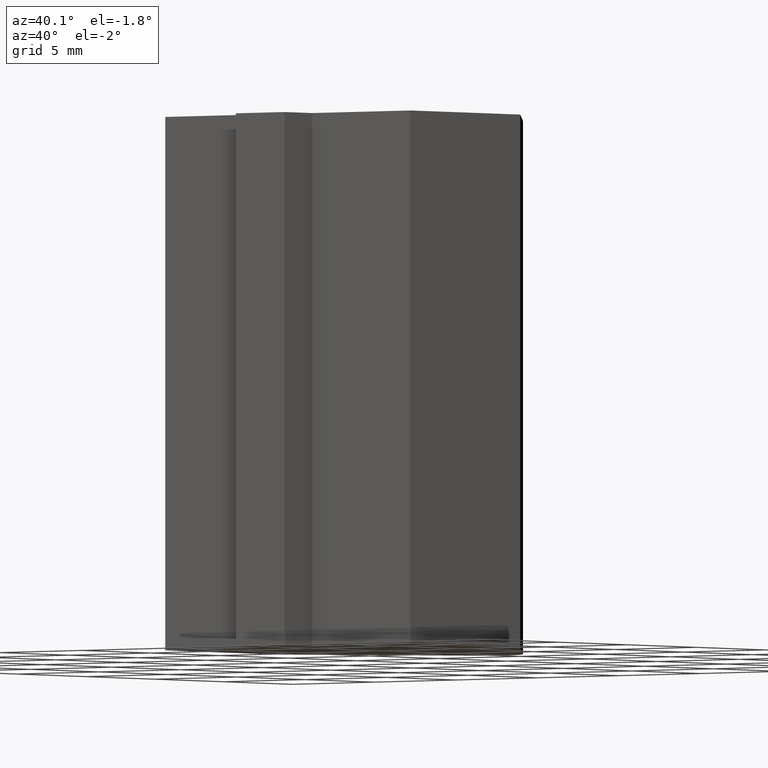
[diagram: clean part render]
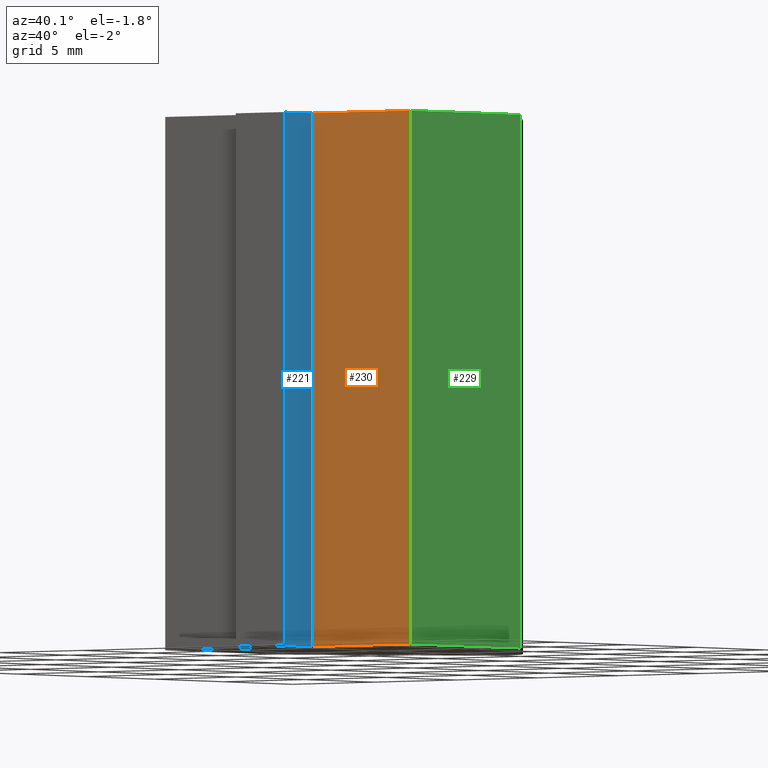
[diagram: same view with three faces highlighted in distinct colors, each labeled with its STEP entity id]
A machine part, auxiliary view with three faces highlighted in distinct colors.
Their STEP definitions:

[orange] entity #230 — the highlighted planar face has unit normal (-0, -1, 0).
#27=FACE_OUTER_BOUND('',#39,.T.);
#39=EDGE_LOOP('',(#195,#196,#197,#198));
#44=LINE('',#333,#72);
#54=LINE('',#354,#82);
#69=LINE('',#386,#97);
#70=LINE('',#388,#98);
#72=VECTOR('',#274,10.);
#82=VECTOR('',#288,10.);
#97=VECTOR('',#321,10.);
#98=VECTOR('',#324,10.);
#99=VERTEX_POINT('',#329);
#101=VERTEX_POINT('',#332);
#109=VERTEX_POINT('',#350);
#118=VERTEX_POINT('',#384);
#120=EDGE_CURVE('',#101,#99,#44,.T.);
#131=EDGE_CURVE('',#109,#101,#54,.T.);
#147=EDGE_CURVE('',#99,#118,#69,.T.);
#148=EDGE_CURVE('',#118,#109,#70,.T.);
#195=ORIENTED_EDGE('',*,*,#148,.T.);
#196=ORIENTED_EDGE('',*,*,#131,.T.);
#197=ORIENTED_EDGE('',*,*,#120,.T.);
#198=ORIENTED_EDGE('',*,*,#147,.T.);
#218=PLANE('',#267);
#230=ADVANCED_FACE('',(#27),#218,.T.);
#267=AXIS2_PLACEMENT_3D('',#387,#322,#323);
#274=DIRECTION('',(1.,-1.22464679914736E-16,0.));
#288=DIRECTION('',(0.,0.,-1.));
#321=DIRECTION('',(0.,0.,1.));
#322=DIRECTION('center_axis',(-1.22464679914736E-16,-1.,0.));
#323=DIRECTION('ref_axis',(0.,0.,-1.));
#324=DIRECTION('',(-1.,1.22464679914736E-16,0.));
#329=CARTESIAN_POINT('',(7.5,2.21076160048808E-15,-12.5));
#332=CARTESIAN_POINT('',(1.5,2.9455496799765E-15,-12.5));
#333=CARTESIAN_POINT('',(7.5,2.21076160048808E-15,-12.5));
#350=CARTESIAN_POINT('',(1.5,2.9455496799765E-15,12.5));
#354=CARTESIAN_POINT('',(1.5,2.9455496799765E-15,0.));
#384=CARTESIAN_POINT('',(7.5,2.21076160048808E-15,12.5));
#386=CARTESIAN_POINT('',(7.5,2.21076160048808E-15,0.));
#387=CARTESIAN_POINT('Origin',(7.5,2.21076160048808E-15,0.));
#388=CARTESIAN_POINT('',(7.5,2.21076160048808E-15,12.5));

[blue] entity #221 — the highlighted planar face has unit normal (1, 0, 0).
#18=FACE_OUTER_BOUND('',#30,.T.);
#30=EDGE_LOOP('',(#159,#160,#161,#162));
#45=LINE('',#335,#73);
#52=LINE('',#352,#80);
#53=LINE('',#353,#81);
#54=LINE('',#354,#82);
#73=VECTOR('',#275,10.);
#80=VECTOR('',#286,10.);
#81=VECTOR('',#287,10.);
#82=VECTOR('',#288,10.);
#101=VERTEX_POINT('',#332);
#102=VERTEX_POINT('',#334);
#109=VERTEX_POINT('',#350);
#110=VERTEX_POINT('',#351);
#121=EDGE_CURVE('',#102,#101,#45,.T.);
#129=EDGE_CURVE('',#109,#110,#52,.T.);
#130=EDGE_CURVE('',#110,#102,#53,.T.);
#131=EDGE_CURVE('',#109,#101,#54,.T.);
#159=ORIENTED_EDGE('',*,*,#129,.T.);
#160=ORIENTED_EDGE('',*,*,#130,.T.);
#161=ORIENTED_EDGE('',*,*,#121,.T.);
#162=ORIENTED_EDGE('',*,*,#131,.F.);
#210=PLANE('',#257);
#221=ADVANCED_FACE('',(#18),#210,.T.);
#257=AXIS2_PLACEMENT_3D('',#349,#284,#285);
#275=DIRECTION('',(-5.55111512312578E-16,1.,0.));
#284=DIRECTION('center_axis',(1.,5.55111512312578E-16,0.));
#285=DIRECTION('ref_axis',(0.,0.,-1.));
#286=DIRECTION('',(5.55111512312578E-16,-1.,0.));
#287=DIRECTION('',(0.,0.,-1.));
#288=DIRECTION('',(0.,0.,-1.));
#332=CARTESIAN_POINT('',(1.5,2.9455496799765E-15,-12.5));
#334=CARTESIAN_POINT('',(1.5,-2.,-12.5));
#335=CARTESIAN_POINT('',(1.5,2.9455496799765E-15,-12.5));
#349=CARTESIAN_POINT('Origin',(1.5,2.9455496799765E-15,0.));
#350=CARTESIAN_POINT('',(1.5,2.9455496799765E-15,12.5));
#351=CARTESIAN_POINT('',(1.5,-2.,12.5));
#352=CARTESIAN_POINT('',(1.5,2.9455496799765E-15,12.5));
#353=CARTESIAN_POINT('',(1.5,-2.,0.));
#354=CARTESIAN_POINT('',(1.5,2.9455496799765E-15,0.));

[green] entity #229 — the highlighted planar face has unit normal (1, 0, 0).
#26=FACE_OUTER_BOUND('',#38,.T.);
#38=EDGE_LOOP('',(#191,#192,#193,#194));
#43=LINE('',#331,#71);
#67=LINE('',#382,#95);
#68=LINE('',#385,#96);
#69=LINE('',#386,#97);
#71=VECTOR('',#273,10.);
#95=VECTOR('',#317,10.);
#96=VECTOR('',#320,10.);
#97=VECTOR('',#321,10.);
#99=VERTEX_POINT('',#329);
#100=VERTEX_POINT('',#330);
#117=VERTEX_POINT('',#380);
#118=VERTEX_POINT('',#384);
#119=EDGE_CURVE('',#99,#100,#43,.T.);
#145=EDGE_CURVE('',#117,#100,#67,.T.);
#146=EDGE_CURVE('',#117,#118,#68,.T.);
#147=EDGE_CURVE('',#99,#118,#69,.T.);
#191=ORIENTED_EDGE('',*,*,#146,.T.);
#192=ORIENTED_EDGE('',*,*,#147,.F.);
#193=ORIENTED_EDGE('',*,*,#119,.T.);
#194=ORIENTED_EDGE('',*,*,#145,.F.);
#217=PLANE('',#266);
#229=ADVANCED_FACE('',(#26),#217,.T.);
#266=AXIS2_PLACEMENT_3D('',#383,#318,#319);
#273=DIRECTION('',(0.,1.,0.));
#317=DIRECTION('',(0.,0.,-1.));
#318=DIRECTION('center_axis',(1.,0.,0.));
#319=DIRECTION('ref_axis',(0.,0.,-1.));
#320=DIRECTION('',(0.,-1.,0.));
#321=DIRECTION('',(0.,0.,1.));
#329=CARTESIAN_POINT('',(7.5,2.21076160048808E-15,-12.5));
#330=CARTESIAN_POINT('',(7.5,8.,-12.5));
#331=CARTESIAN_POINT('',(7.5,8.,-12.5));
#380=CARTESIAN_POINT('',(7.5,8.,12.5));
#382=CARTESIAN_POINT('',(7.5,8.,0.));
#383=CARTESIAN_POINT('Origin',(7.5,8.,0.));
#384=CARTESIAN_POINT('',(7.5,2.21076160048808E-15,12.5));
#385=CARTESIAN_POINT('',(7.5,8.,12.5));
#386=CARTESIAN_POINT('',(7.5,2.21076160048808E-15,0.));